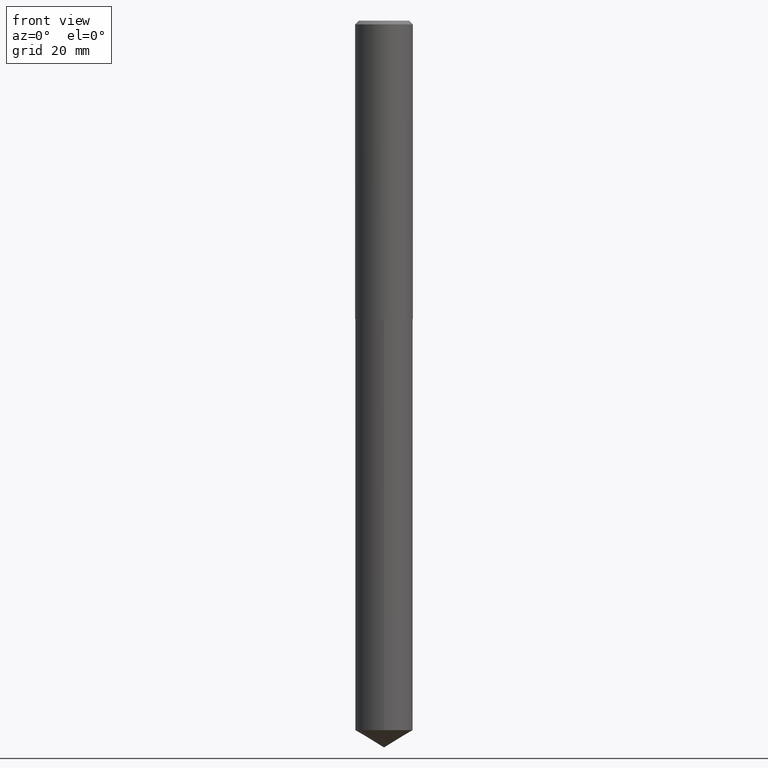
[diagram: clean part render]
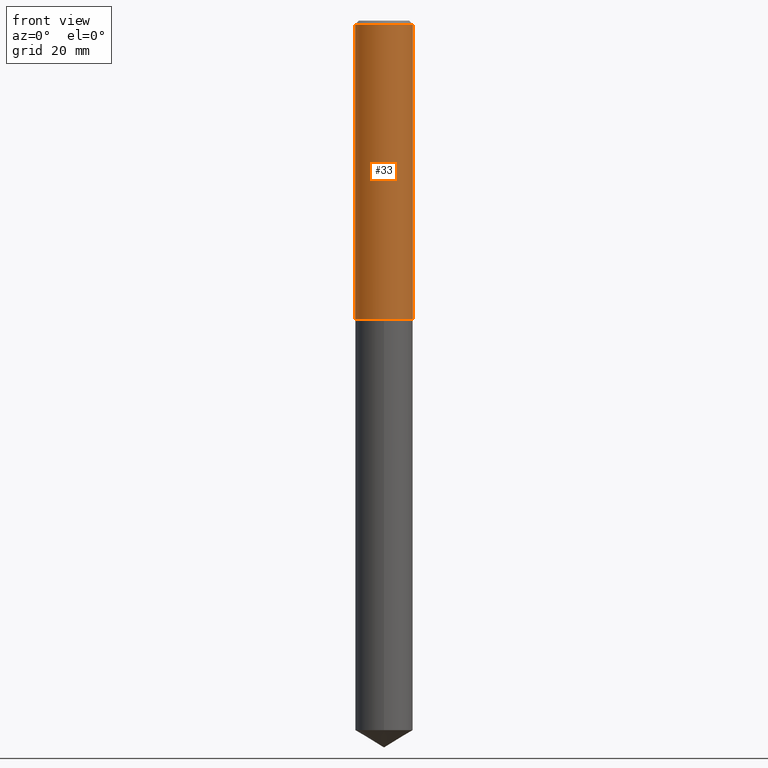
[diagram: same view with one face highlighted and labeled with its STEP entity id]
A machine part, front view. The second image highlights one B-rep face of the part: STEP entity #33.
In plain terms, the highlighted cylindrical surface (edge-blend (fillet) strip) has radius 5.9995 mm, axis along (-0, 0, 1).
Its self-contained STEP definition (entity closure, byte-faithful):
#1 = VERTEX_POINT ( 'NONE', #124 ) ;
#14 = EDGE_CURVE ( 'NONE', #335, #155, #183, .T. ) ;
#26 = AXIS2_PLACEMENT_3D ( 'NONE', #243, #356, #213 ) ;
#31 = CARTESIAN_POINT ( 'NONE',  ( 0.2362000000000001321, -1.649375784469497117E-15, 1.151752954443000789E-29 ) ) ;
#33 = ADVANCED_FACE ( 'NONE', ( #215 ), #34, .T. ) ;
#34 = CYLINDRICAL_SURFACE ( 'NONE', #44, 0.2362000000000001321 ) ;
#37 = ORIENTED_EDGE ( 'NONE', *, *, #96, .T. ) ;
#44 = AXIS2_PLACEMENT_3D ( 'NONE', #152, #273, #390 ) ;
#94 = ORIENTED_EDGE ( 'NONE', *, *, #203, .F. ) ;
#96 = EDGE_CURVE ( 'NONE', #155, #364, #296, .T. ) ;
#100 = AXIS2_PLACEMENT_3D ( 'NONE', #193, #286, #309 ) ;
#102 = LINE ( 'NONE', #163, #138 ) ;
#104 = CARTESIAN_POINT ( 'NONE',  ( 0.2361999999999999933, -1.758484576308345231E-15, -0.03125000000000021511 ) ) ;
#124 = CARTESIAN_POINT ( 'NONE',  ( -0.2361999999999999933, -2.636557983710470337E-15, -0.03125000000000021511 ) ) ;
#138 = VECTOR ( 'NONE', #194, 39.37007874015748143 ) ;
#143 = ORIENTED_EDGE ( 'NONE', *, *, #14, .T. ) ;
#152 = CARTESIAN_POINT ( 'NONE',  ( 0.000000000000000000, 0.000000000000000000, 0.000000000000000000 ) ) ;
#155 = VERTEX_POINT ( 'NONE', #333 ) ;
#163 = CARTESIAN_POINT ( 'NONE',  ( -0.2362000000000001321, 1.678301941865357577E-15, -1.161852468318209457E-29 ) ) ;
#179 = DIRECTION ( 'NONE',  ( -2.445468806185136877E-29, 3.491481338843145188E-15, 1.000000000000000000 ) ) ;
#183 = CIRCLE ( 'NONE', #26, 0.2362000000000002709 ) ;
#193 = CARTESIAN_POINT ( 'NONE',  ( 7.642090019328603538E-31, -1.091087918388490390E-16, -0.03125000000000021511 ) ) ;
#194 = DIRECTION ( 'NONE',  ( -2.445468806185136877E-29, 3.491481338843145188E-15, 1.000000000000000000 ) ) ;
#195 = ORIENTED_EDGE ( 'NONE', *, *, #323, .F. ) ;
#203 = EDGE_CURVE ( 'NONE', #1, #364, #271, .T. ) ;
#213 = DIRECTION ( 'NONE',  ( 1.000000000000000000, -6.982962677686269077E-15, 0.000000000000000000 ) ) ;
#215 = FACE_OUTER_BOUND ( 'NONE', #287, .T. ) ;
#218 = CARTESIAN_POINT ( 'NONE',  ( -0.2362000000000002709, -6.842309117447451124E-15, -2.440399999999999014 ) ) ;
#243 = CARTESIAN_POINT ( 'NONE',  ( 5.967922074614205116E-29, -8.520611059312809095E-15, -2.440399999999999014 ) ) ;
#263 = VECTOR ( 'NONE', #179, 39.37007874015748143 ) ;
#271 = CIRCLE ( 'NONE', #100, 0.2361999999999999933 ) ;
#273 = DIRECTION ( 'NONE',  ( -2.445468806185136597E-29, 3.491481338843145583E-15, 1.000000000000000000 ) ) ;
#286 = DIRECTION ( 'NONE',  ( -2.445468806185136597E-29, 3.491481338843145583E-15, 1.000000000000000000 ) ) ;
#287 = EDGE_LOOP ( 'NONE', ( #195, #143, #37, #94 ) ) ;
#296 = LINE ( 'NONE', #31, #263 ) ;
#309 = DIRECTION ( 'NONE',  ( 1.000000000000000000, -6.982962677686266711E-15, 0.000000000000000000 ) ) ;
#323 = EDGE_CURVE ( 'NONE', #335, #1, #102, .T. ) ;
#333 = CARTESIAN_POINT ( 'NONE',  ( 0.2362000000000002709, -1.016998684378230720E-14, -2.440399999999999014 ) ) ;
#335 = VERTEX_POINT ( 'NONE', #218 ) ;
#356 = DIRECTION ( 'NONE',  ( -2.445468806185136597E-29, 3.491481338843145583E-15, 1.000000000000000000 ) ) ;
#364 = VERTEX_POINT ( 'NONE', #104 ) ;
#390 = DIRECTION ( 'NONE',  ( 1.000000000000000000, -6.982962677686266711E-15, 4.876176775795936353E-29 ) ) ;